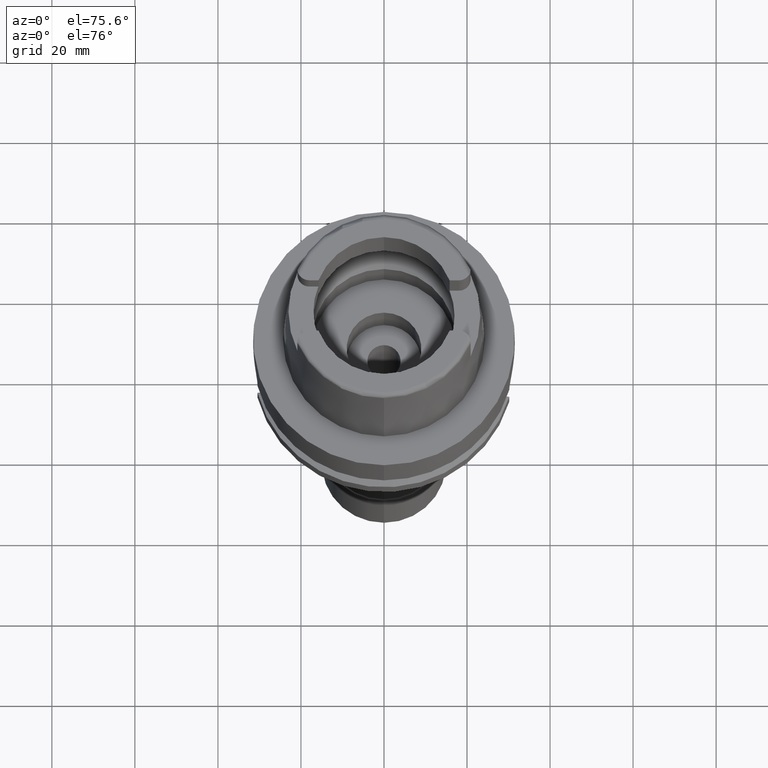
[diagram: clean part render]
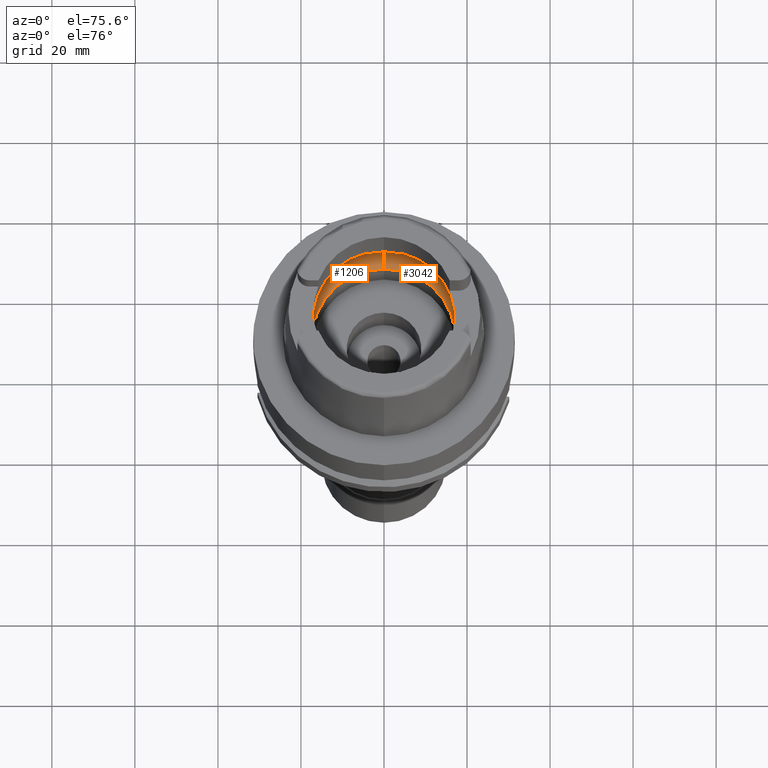
[diagram: same view with one multi-face feature highlighted, each face labeled with its STEP entity id]
A machine part, auxiliary view. The highlighted faces form ONE feature: a constant-radius fillet chain: 2 tangent blend faces with common blend radius 8 mm. The faces share edges in the B-rep.
Their STEP definitions:
[1] entity #3042 (Torus):
#17 = ORIENTED_EDGE ( 'NONE', *, *, #508, .F. ) ;
#259 = DIRECTION ( 'NONE',  ( 0.0000000000000000000, -0.6562500000000006661, -0.7545435292281016393 ) ) ;
#306 = CARTESIAN_POINT ( 'NONE',  ( 19.92546246839948410, 1.335240779489388130, 5.495763556830105756 ) ) ;
#336 = CARTESIAN_POINT ( 'NONE',  ( 19.93095478351687788, -1.158129430943390714, 5.432640251379949881 ) ) ;
#388 = CARTESIAN_POINT ( 'NONE',  ( 19.91447780742437246, 1.610663291711310841, 5.612998104004511823 ) ) ;
#429 = B_SPLINE_CURVE_WITH_KNOTS ( 'NONE', 3,
 ( #4597, #4162, #4188, #732, #3263, #388, #2096, #3768, #1255, #1175, #2419, #306, #4552, #4978, #1202 ),
 .UNSPECIFIED., .F., .F.,
 ( 4, 2, 2, 1, 1, 1, 2, 2, 4 ),
 ( 0.0000000000000000000, 0.2499999999999978906, 0.3749999999999969469, 0.4374999999999963363, 0.4687499999999959477, 0.4843749999999960587, 0.4921874999999960032, 0.4999999999999960032, 1.000000000000000000 ),
 .UNSPECIFIED. ) ;
#508 = EDGE_CURVE ( 'NONE', #1876, #5351, #3523, .T. ) ;
#520 = VERTEX_POINT ( 'NONE', #5195 ) ;
#596 = DIRECTION ( 'NONE',  ( 0.9922879323327794543, -0.1239542631244973381, 0.0000000000000000000 ) ) ;
#638 = ORIENTED_EDGE ( 'NONE', *, *, #2674, .F. ) ;
#732 = CARTESIAN_POINT ( 'NONE',  ( 19.90056121658070509, 1.871176557661653028, 5.748254428408765548 ) ) ;
#767 = DIRECTION ( 'NONE',  ( 0.0000000000000000000, 1.000000000000000000, 0.0000000000000000000 ) ) ;
#771 = AXIS2_PLACEMENT_3D ( 'NONE', #4337, #2642, #5153 ) ;
#843 = CARTESIAN_POINT ( 'NONE',  ( 19.92705251603473116, -1.287137774195264317, 5.477775297526362941 ) ) ;
#852 = CARTESIAN_POINT ( 'NONE',  ( 19.94501428475999916, 0.0000000000000000000, 5.250000000000000000 ) ) ;
#972 = CARTESIAN_POINT ( 'NONE',  ( 0.0000000000000000000, -12.00000000000000000, 6.186348233825000875 ) ) ;
#992 = CARTESIAN_POINT ( 'NONE',  ( 0.0000000000000000000, 0.0000000000000000000, 6.186348233825000875 ) ) ;
#1092 = CARTESIAN_POINT ( 'NONE',  ( 0.0000000000000000000, -20.00000000000000000, 6.186348233825000875 ) ) ;
#1175 = CARTESIAN_POINT ( 'NONE',  ( 19.92466859728581952, 1.358323626958147345, 5.504643456233413445 ) ) ;
#1177 = CARTESIAN_POINT ( 'NONE',  ( 19.84575864665999845, -2.479085262491000030, 6.186348233825000875 ) ) ;
#1202 = CARTESIAN_POINT ( 'NONE',  ( 19.94501428475999916, 0.0000000000000000000, 5.250000000000000000 ) ) ;
#1255 = CARTESIAN_POINT ( 'NONE',  ( 19.92390802166061903, 1.380021155214873119, 5.513101308918829879 ) ) ;
#1306 = ORIENTED_EDGE ( 'NONE', *, *, #4147, .F. ) ;
#1377 = VERTEX_POINT ( 'NONE', #3490 ) ;
#1556 = FACE_OUTER_BOUND ( 'NONE', #4567, .T. ) ;
#1687 = DIRECTION ( 'NONE',  ( 0.0000000000000000000, 0.0000000000000000000, -1.000000000000000000 ) ) ;
#1709 = CARTESIAN_POINT ( 'NONE',  ( 19.90995224292280952, -1.795938310847498887, 5.670407811397682352 ) ) ;
#1876 = VERTEX_POINT ( 'NONE', #852 ) ;
#1894 = ORIENTED_EDGE ( 'NONE', *, *, #3248, .F. ) ;
#1940 = AXIS2_PLACEMENT_3D ( 'NONE', #992, #4328, #596 ) ;
#2040 = DIRECTION ( 'NONE',  ( 0.0000000000000000000, 1.000000000000000000, 0.0000000000000000000 ) ) ;
#2096 = CARTESIAN_POINT ( 'NONE',  ( 19.91819203562567253, 1.528958543118313473, 5.574902925593662850 ) ) ;
#2281 = CARTESIAN_POINT ( 'NONE',  ( 19.84575864665999845, -2.479085262491000030, 6.186348233825000875 ) ) ;
#2337 = VERTEX_POINT ( 'NONE', #3905 ) ;
#2360 = VERTEX_POINT ( 'NONE', #1092 ) ;
#2419 = CARTESIAN_POINT ( 'NONE',  ( 19.92517031495895097, 1.343818775761117967, 5.499041339644736404 ) ) ;
#2446 = EDGE_CURVE ( 'NONE', #3495, #520, #3003, .T. ) ;
#2501 = CARTESIAN_POINT ( 'NONE',  ( 19.94501428475999560, -0.2480409225904678383, 5.250000000000000000 ) ) ;
#2526 = CARTESIAN_POINT ( 'NONE',  ( 19.92646197918816142, -1.305240201015147816, 5.484478803106724421 ) ) ;
#2642 = DIRECTION ( 'NONE',  ( 1.000000000000000000, 0.0000000000000000000, 0.0000000000000000000 ) ) ;
#2674 = EDGE_CURVE ( 'NONE', #1377, #1876, #429, .T. ) ;
#2712 = DIRECTION ( 'NONE',  ( 0.0000000000000000000, -1.000000000000000000, 0.0000000000000000000 ) ) ;
#2901 = DIRECTION ( 'NONE',  ( 0.0000000000000000000, 0.0000000000000000000, 1.000000000000000000 ) ) ;
#3003 = CIRCLE ( 'NONE', #3723, 17.25000000000000000 ) ;
#3042 = ADVANCED_FACE ( 'NONE', ( #1556 ), #4134, .F. ) ;
#3051 = CIRCLE ( 'NONE', #771, 7.999999999999992895 ) ;
#3248 = EDGE_CURVE ( 'NONE', #5351, #2360, #5448, .T. ) ;
#3263 = CARTESIAN_POINT ( 'NONE',  ( 19.90653740763088919, 1.770130309642983013, 5.691947549107391424 ) ) ;
#3264 = ORIENTED_EDGE ( 'NONE', *, *, #5164, .F. ) ;
#3490 = CARTESIAN_POINT ( 'NONE',  ( 19.84575864665999845, 2.479085262491000030, 6.186348233825000875 ) ) ;
#3495 = VERTEX_POINT ( 'NONE', #4542 ) ;
#3523 = B_SPLINE_CURVE_WITH_KNOTS ( 'NONE', 3,
 ( #4643, #2501, #4624, #4136, #4192, #5450, #336, #5422, #843, #2526, #4165, #4955, #1709, #5393, #1177 ),
 .UNSPECIFIED., .F., .F.,
 ( 4, 2, 2, 1, 1, 1, 2, 2, 4 ),
 ( 0.0000000000000000000, 0.2499999999999993339, 0.3749999999999990008, 0.4374999999999986677, 0.4687499999999983902, 0.4843749999999981126, 0.4921874999999981681, 0.4999999999999982792, 1.000000000000000000 ),
 .UNSPECIFIED. ) ;
#3570 = CARTESIAN_POINT ( 'NONE',  ( 0.0000000000000000000, 0.0000000000000000000, 0.1500000000000999700 ) ) ;
#3653 = ORIENTED_EDGE ( 'NONE', *, *, #4661, .T. ) ;
#3682 = AXIS2_PLACEMENT_3D ( 'NONE', #4972, #2901, #2040 ) ;
#3723 = AXIS2_PLACEMENT_3D ( 'NONE', #3570, #5305, #2712 ) ;
#3768 = CARTESIAN_POINT ( 'NONE',  ( 19.92207735139349367, 1.430229258461773956, 5.533213523230517517 ) ) ;
#3868 = AXIS2_PLACEMENT_3D ( 'NONE', #4196, #1687, #767 ) ;
#3905 = CARTESIAN_POINT ( 'NONE',  ( 0.0000000000000000000, 20.00000000000000000, 6.186348233825000875 ) ) ;
#4046 = CIRCLE ( 'NONE', #5269, 7.999999999999992895 ) ;
#4134 = TOROIDAL_SURFACE ( 'NONE', #3682, 12.00000000000000000, 8.000000000000000000 ) ;
#4136 = CARTESIAN_POINT ( 'NONE',  ( 19.93856404763053192, -0.8186976556962145546, 5.338708415004473906 ) ) ;
#4147 = EDGE_CURVE ( 'NONE', #2337, #1377, #4833, .T. ) ;
#4162 = CARTESIAN_POINT ( 'NONE',  ( 19.86453694063900954, 2.328759859908619223, 6.053897766926341184 ) ) ;
#4165 = CARTESIAN_POINT ( 'NONE',  ( 19.92606513842726201, -1.317277204138071589, 5.488971370721936083 ) ) ;
#4188 = CARTESIAN_POINT ( 'NONE',  ( 19.88058486986654572, 2.158464112384509193, 5.925242031513535679 ) ) ;
#4192 = CARTESIAN_POINT ( 'NONE',  ( 19.93654834852758029, -0.9262717684427494991, 5.364597653862777982 ) ) ;
#4196 = CARTESIAN_POINT ( 'NONE',  ( 0.0000000000000000000, 0.0000000000000000000, 6.186348233825000875 ) ) ;
#4328 = DIRECTION ( 'NONE',  ( 0.0000000000000000000, 0.0000000000000000000, -1.000000000000000000 ) ) ;
#4337 = CARTESIAN_POINT ( 'NONE',  ( 0.0000000000000000000, 12.00000000000000000, 6.186348233825000875 ) ) ;
#4339 = DIRECTION ( 'NONE',  ( -1.000000000000000000, 0.0000000000000000000, 0.0000000000000000000 ) ) ;
#4542 = CARTESIAN_POINT ( 'NONE',  ( 0.0000000000000000000, -17.25000000000000000, 0.1500000000000999700 ) ) ;
#4552 = CARTESIAN_POINT ( 'NONE',  ( 19.93856420101220195, 0.9461154250117944642, 5.348253029309250728 ) ) ;
#4567 = EDGE_LOOP ( 'NONE', ( #638, #1306, #3264, #5249, #3653, #1894, #17 ) ) ;
#4597 = CARTESIAN_POINT ( 'NONE',  ( 19.84575864665999845, 2.479085262491000030, 6.186348233825000875 ) ) ;
#4624 = CARTESIAN_POINT ( 'NONE',  ( 19.94340172547763146, -0.4850964740021458943, 5.274618261423835719 ) ) ;
#4643 = CARTESIAN_POINT ( 'NONE',  ( 19.94501428475999916, 0.0000000000000000000, 5.250000000000000000 ) ) ;
#4661 = EDGE_CURVE ( 'NONE', #3495, #2360, #4046, .T. ) ;
#4833 = CIRCLE ( 'NONE', #3868, 20.00000000000000000 ) ;
#4955 = CARTESIAN_POINT ( 'NONE',  ( 19.92590906290985586, -1.321975527286266106, 5.490734903793783594 ) ) ;
#4972 = CARTESIAN_POINT ( 'NONE',  ( 0.0000000000000000000, 0.0000000000000000000, 6.186348233825000875 ) ) ;
#4978 = CARTESIAN_POINT ( 'NONE',  ( 19.94501428475999560, 0.4961178817713813860, 5.250000000000000888 ) ) ;
#5153 = DIRECTION ( 'NONE',  ( 0.0000000000000000000, 0.6562500000000006661, -0.7545435292281016393 ) ) ;
#5164 = EDGE_CURVE ( 'NONE', #520, #2337, #3051, .T. ) ;
#5195 = CARTESIAN_POINT ( 'NONE',  ( 0.0000000000000000000, 17.25000000000000000, 0.1500000000000999700 ) ) ;
#5249 = ORIENTED_EDGE ( 'NONE', *, *, #2446, .F. ) ;
#5269 = AXIS2_PLACEMENT_3D ( 'NONE', #972, #4339, #259 ) ;
#5305 = DIRECTION ( 'NONE',  ( 0.0000000000000000000, 0.0000000000000000000, 1.000000000000000000 ) ) ;
#5351 = VERTEX_POINT ( 'NONE', #2281 ) ;
#5393 = CARTESIAN_POINT ( 'NONE',  ( 19.88331726735227534, -2.178418184679673075, 5.921432962333633476 ) ) ;
#5422 = CARTESIAN_POINT ( 'NONE',  ( 19.92839736527999150, -1.244570816102678723, 5.462385030248693596 ) ) ;
#5448 = CIRCLE ( 'NONE', #1940, 20.00000000000001421 ) ;
#5450 = CARTESIAN_POINT ( 'NONE',  ( 19.93292009014226096, -1.081811776603611053, 5.409026499425223733 ) ) ;
[2] entity #1206 (Torus):
#5 = CARTESIAN_POINT ( 'NONE',  ( -19.92390774200794112, -1.380028552273980136, 5.513104237275524788 ) ) ;
#52 = CARTESIAN_POINT ( 'NONE',  ( -19.90653714044385936, -1.770134880955051226, 5.691950022312413537 ) ) ;
#65 = CARTESIAN_POINT ( 'NONE',  ( -19.88331748051938064, 2.178416478297318104, 5.921431458854276464 ) ) ;
#109 = ORIENTED_EDGE ( 'NONE', *, *, #4371, .F. ) ;
#164 = CARTESIAN_POINT ( 'NONE',  ( -19.94501428475999560, -0.4961209670605932209, 5.249999999999998224 ) ) ;
#259 = DIRECTION ( 'NONE',  ( 0.0000000000000000000, -0.6562500000000006661, -0.7545435292281016393 ) ) ;
#481 = CARTESIAN_POINT ( 'NONE',  ( -19.92606541085463689, 1.317269455711140846, 5.488968463726680014 ) ) ;
#490 = B_SPLINE_CURVE_WITH_KNOTS ( 'NONE', 3,
 ( #4821, #1352, #1773, #4706, #2587, #1800, #4283, #3492, #4396, #939, #481, #600, #4365, #65, #1440 ),
 .UNSPECIFIED., .F., .F.,
 ( 4, 2, 2, 1, 1, 1, 2, 2, 4 ),
 ( 0.0000000000000000000, 0.2500000000000037748, 0.3750000000000058287, 0.4375000000000067168, 0.4687500000000069944, 0.4843750000000072720, 0.4921875000000072720, 0.5000000000000072164, 1.000000000000000000 ),
 .UNSPECIFIED. ) ;
#520 = VERTEX_POINT ( 'NONE', #5195 ) ;
#600 = CARTESIAN_POINT ( 'NONE',  ( -19.92590934067762731, 1.321967662511047470, 5.490731940949380885 ) ) ;
#602 = AXIS2_PLACEMENT_3D ( 'NONE', #1602, #2504, #4558 ) ;
#649 = CARTESIAN_POINT ( 'NONE',  ( 0.0000000000000000000, 0.0000000000000000000, 6.186348233825000875 ) ) ;
#685 = ORIENTED_EDGE ( 'NONE', *, *, #5164, .T. ) ;
#700 = CIRCLE ( 'NONE', #602, 20.00000000000001421 ) ;
#771 = AXIS2_PLACEMENT_3D ( 'NONE', #4337, #2642, #5153 ) ;
#772 = ORIENTED_EDGE ( 'NONE', *, *, #5446, .F. ) ;
#939 = CARTESIAN_POINT ( 'NONE',  ( -19.92646224591025472, 1.305232515153943673, 5.484475949585862153 ) ) ;
#950 = DIRECTION ( 'NONE',  ( 0.0000000000000000000, 0.0000000000000000000, -1.000000000000000000 ) ) ;
#972 = CARTESIAN_POINT ( 'NONE',  ( 0.0000000000000000000, -12.00000000000000000, 6.186348233825000875 ) ) ;
#985 = CARTESIAN_POINT ( 'NONE',  ( -19.88058468752640806, -2.158466029911068951, 5.925243478961304433 ) ) ;
#1010 = VERTEX_POINT ( 'NONE', #3200 ) ;
#1054 = CIRCLE ( 'NONE', #1760, 17.25000000000000000 ) ;
#1092 = CARTESIAN_POINT ( 'NONE',  ( 0.0000000000000000000, -20.00000000000000000, 6.186348233825000875 ) ) ;
#1098 = DIRECTION ( 'NONE',  ( 0.0000000000000000000, 0.0000000000000000000, 1.000000000000000000 ) ) ;
#1158 = VERTEX_POINT ( 'NONE', #4998 ) ;
#1171 = CARTESIAN_POINT ( 'NONE',  ( -19.94501428475999916, 0.0000000000000000000, 5.250000000000000000 ) ) ;
#1206 = ADVANCED_FACE ( 'NONE', ( #4473 ), #2393, .F. ) ;
#1344 = CARTESIAN_POINT ( 'NONE',  ( -19.92546218847456529, -1.335248582686434426, 5.495766530070138600 ) ) ;
#1352 = CARTESIAN_POINT ( 'NONE',  ( -19.94501428476000271, 0.2480393703315448006, 5.249999999999999112 ) ) ;
#1440 = CARTESIAN_POINT ( 'NONE',  ( -19.84575864665999845, 2.479085262489999941, 6.186348233825000875 ) ) ;
#1568 = EDGE_CURVE ( 'NONE', #1158, #5078, #490, .T. ) ;
#1602 = CARTESIAN_POINT ( 'NONE',  ( 0.0000000000000000000, 0.0000000000000000000, 6.186348233825000875 ) ) ;
#1679 = ORIENTED_EDGE ( 'NONE', *, *, #1568, .F. ) ;
#1760 = AXIS2_PLACEMENT_3D ( 'NONE', #2848, #4570, #4547 ) ;
#1773 = CARTESIAN_POINT ( 'NONE',  ( -19.94340174866101734, 0.4850934535354030630, 5.274617952747172822 ) ) ;
#1800 = CARTESIAN_POINT ( 'NONE',  ( -19.93292026401761419, 1.081805289724191210, 5.409024550128566311 ) ) ;
#1811 = ORIENTED_EDGE ( 'NONE', *, *, #4145, .F. ) ;
#2102 = EDGE_LOOP ( 'NONE', ( #772, #3988, #5316, #685, #1811, #1679, #109 ) ) ;
#2258 = CARTESIAN_POINT ( 'NONE',  ( -19.91819175305377243, -1.528964846757111973, 5.574905751837347267 ) ) ;
#2337 = VERTEX_POINT ( 'NONE', #3905 ) ;
#2360 = VERTEX_POINT ( 'NONE', #1092 ) ;
#2393 = TOROIDAL_SURFACE ( 'NONE', #5380, 12.00000000000000000, 8.000000000000000000 ) ;
#2504 = DIRECTION ( 'NONE',  ( 0.0000000000000000000, 0.0000000000000000000, -1.000000000000000000 ) ) ;
#2587 = CARTESIAN_POINT ( 'NONE',  ( -19.93654847024033927, 0.9262661514275534191, 5.364596242157149142 ) ) ;
#2602 = AXIS2_PLACEMENT_3D ( 'NONE', #3179, #950, #2622 ) ;
#2622 = DIRECTION ( 'NONE',  ( 0.0000000000000000000, -1.000000000000000000, 0.0000000000000000000 ) ) ;
#2642 = DIRECTION ( 'NONE',  ( 1.000000000000000000, 0.0000000000000000000, 0.0000000000000000000 ) ) ;
#2688 = CIRCLE ( 'NONE', #2602, 20.00000000000000000 ) ;
#2832 = DIRECTION ( 'NONE',  ( 0.0000000000000000000, 1.000000000000000000, 0.0000000000000000000 ) ) ;
#2848 = CARTESIAN_POINT ( 'NONE',  ( 0.0000000000000000000, 0.0000000000000000000, 0.1500000000000999700 ) ) ;
#3014 = CARTESIAN_POINT ( 'NONE',  ( -19.91447752810589833, -1.610669004317299313, 5.613000827215236299 ) ) ;
#3030 = B_SPLINE_CURVE_WITH_KNOTS ( 'NONE', 3,
 ( #4751, #3849, #985, #4352, #52, #3014, #2258, #3417, #5, #5114, #3368, #1344, #4697, #164, #1171 ),
 .UNSPECIFIED., .F., .F.,
 ( 4, 2, 2, 1, 1, 1, 2, 2, 4 ),
 ( 0.0000000000000000000, 0.2500000000000016653, 0.3750000000000023870, 0.4375000000000028866, 0.4687500000000030531, 0.4843750000000031641, 0.4921875000000032196, 0.5000000000000032196, 1.000000000000000000 ),
 .UNSPECIFIED. ) ;
#3051 = CIRCLE ( 'NONE', #771, 7.999999999999992895 ) ;
#3179 = CARTESIAN_POINT ( 'NONE',  ( 0.0000000000000000000, 0.0000000000000000000, 6.186348233825000875 ) ) ;
#3200 = CARTESIAN_POINT ( 'NONE',  ( -19.84575864665999845, -2.479085262491000030, 6.186348233825000875 ) ) ;
#3368 = CARTESIAN_POINT ( 'NONE',  ( -19.92517003708521273, -1.343826440312797077, 5.499044281752649255 ) ) ;
#3417 = CARTESIAN_POINT ( 'NONE',  ( -19.92207706994746985, -1.430236285583133204, 5.533216425421237261 ) ) ;
#3492 = CARTESIAN_POINT ( 'NONE',  ( -19.92839760417749062, 1.244563448290384899, 5.462382440187010246 ) ) ;
#3495 = VERTEX_POINT ( 'NONE', #4542 ) ;
#3550 = CARTESIAN_POINT ( 'NONE',  ( -19.84575864665999845, 2.479085262489999941, 6.186348233825000875 ) ) ;
#3849 = CARTESIAN_POINT ( 'NONE',  ( -19.86453683446996266, -2.328760709817148111, 6.053898515773700417 ) ) ;
#3905 = CARTESIAN_POINT ( 'NONE',  ( 0.0000000000000000000, 20.00000000000000000, 6.186348233825000875 ) ) ;
#3988 = ORIENTED_EDGE ( 'NONE', *, *, #4661, .F. ) ;
#4046 = CIRCLE ( 'NONE', #5269, 7.999999999999992895 ) ;
#4145 = EDGE_CURVE ( 'NONE', #5078, #2337, #700, .T. ) ;
#4283 = CARTESIAN_POINT ( 'NONE',  ( -19.93095498564698076, 1.158122524600810666, 5.432638017440244660 ) ) ;
#4337 = CARTESIAN_POINT ( 'NONE',  ( 0.0000000000000000000, 12.00000000000000000, 6.186348233825000875 ) ) ;
#4339 = DIRECTION ( 'NONE',  ( -1.000000000000000000, 0.0000000000000000000, 0.0000000000000000000 ) ) ;
#4352 = CARTESIAN_POINT ( 'NONE',  ( -19.90056096498078375, -1.871180422678105693, 5.748256676446665381 ) ) ;
#4365 = CARTESIAN_POINT ( 'NONE',  ( -19.90995254882344412, 1.795933974831515068, 5.670404978818013753 ) ) ;
#4371 = EDGE_CURVE ( 'NONE', #1010, #1158, #3030, .T. ) ;
#4379 = EDGE_CURVE ( 'NONE', #520, #3495, #1054, .T. ) ;
#4396 = CARTESIAN_POINT ( 'NONE',  ( -19.92705277426681576, 1.287130182688421165, 5.477772523843790431 ) ) ;
#4473 = FACE_OUTER_BOUND ( 'NONE', #2102, .T. ) ;
#4542 = CARTESIAN_POINT ( 'NONE',  ( 0.0000000000000000000, -17.25000000000000000, 0.1500000000000999700 ) ) ;
#4547 = DIRECTION ( 'NONE',  ( 0.0000000000000000000, 1.000000000000000000, 0.0000000000000000000 ) ) ;
#4558 = DIRECTION ( 'NONE',  ( -0.9922879323327794543, 0.1239542631244973381, 0.0000000000000000000 ) ) ;
#4570 = DIRECTION ( 'NONE',  ( 0.0000000000000000000, 0.0000000000000000000, 1.000000000000000000 ) ) ;
#4661 = EDGE_CURVE ( 'NONE', #3495, #2360, #4046, .T. ) ;
#4697 = CARTESIAN_POINT ( 'NONE',  ( -19.93856410866583317, -0.9461212226835923333, 5.348254255821970560 ) ) ;
#4706 = CARTESIAN_POINT ( 'NONE',  ( -19.93856414036406477, 0.8186926599981305674, 5.338707319452686839 ) ) ;
#4751 = CARTESIAN_POINT ( 'NONE',  ( -19.84575864665999845, -2.479085262491000030, 6.186348233825000875 ) ) ;
#4821 = CARTESIAN_POINT ( 'NONE',  ( -19.94501428475999916, 0.0000000000000000000, 5.250000000000000000 ) ) ;
#4998 = CARTESIAN_POINT ( 'NONE',  ( -19.94501428475999916, 0.0000000000000000000, 5.250000000000000000 ) ) ;
#5078 = VERTEX_POINT ( 'NONE', #3550 ) ;
#5114 = CARTESIAN_POINT ( 'NONE',  ( -19.92466831866535770, -1.358331184285348270, 5.504646393194166265 ) ) ;
#5153 = DIRECTION ( 'NONE',  ( 0.0000000000000000000, 0.6562500000000006661, -0.7545435292281016393 ) ) ;
#5164 = EDGE_CURVE ( 'NONE', #520, #2337, #3051, .T. ) ;
#5195 = CARTESIAN_POINT ( 'NONE',  ( 0.0000000000000000000, 17.25000000000000000, 0.1500000000000999700 ) ) ;
#5269 = AXIS2_PLACEMENT_3D ( 'NONE', #972, #4339, #259 ) ;
#5316 = ORIENTED_EDGE ( 'NONE', *, *, #4379, .F. ) ;
#5380 = AXIS2_PLACEMENT_3D ( 'NONE', #649, #1098, #2832 ) ;
#5446 = EDGE_CURVE ( 'NONE', #2360, #1010, #2688, .T. ) ;